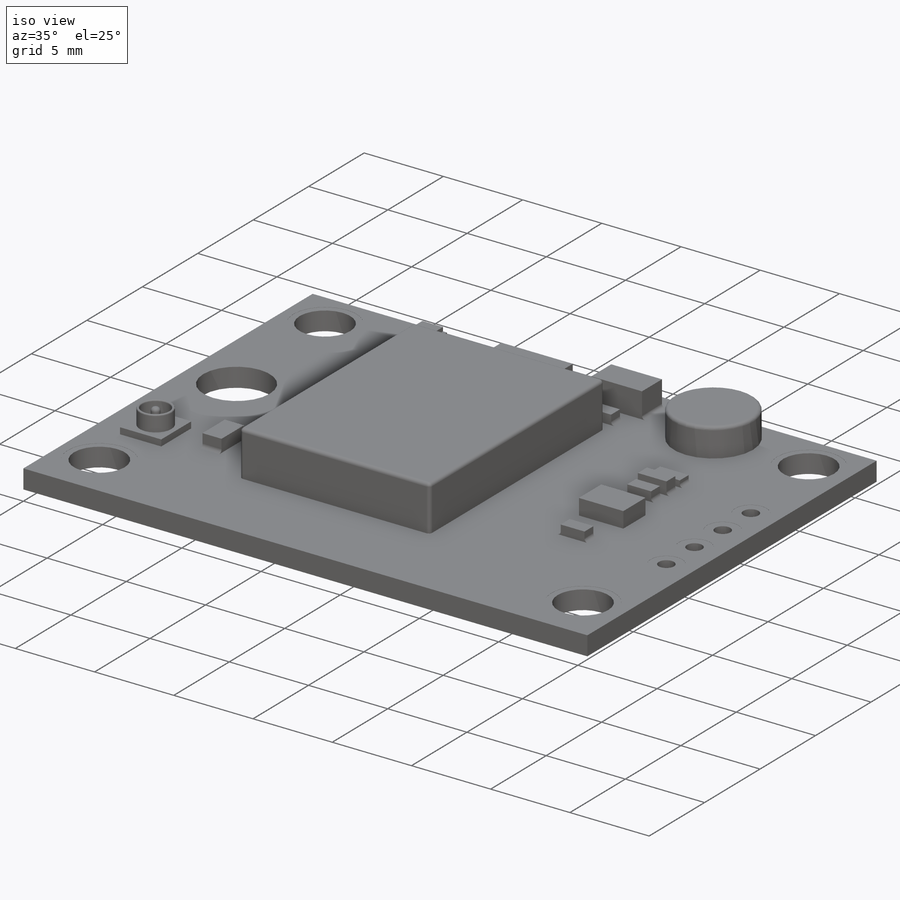
[diagram: iso view]
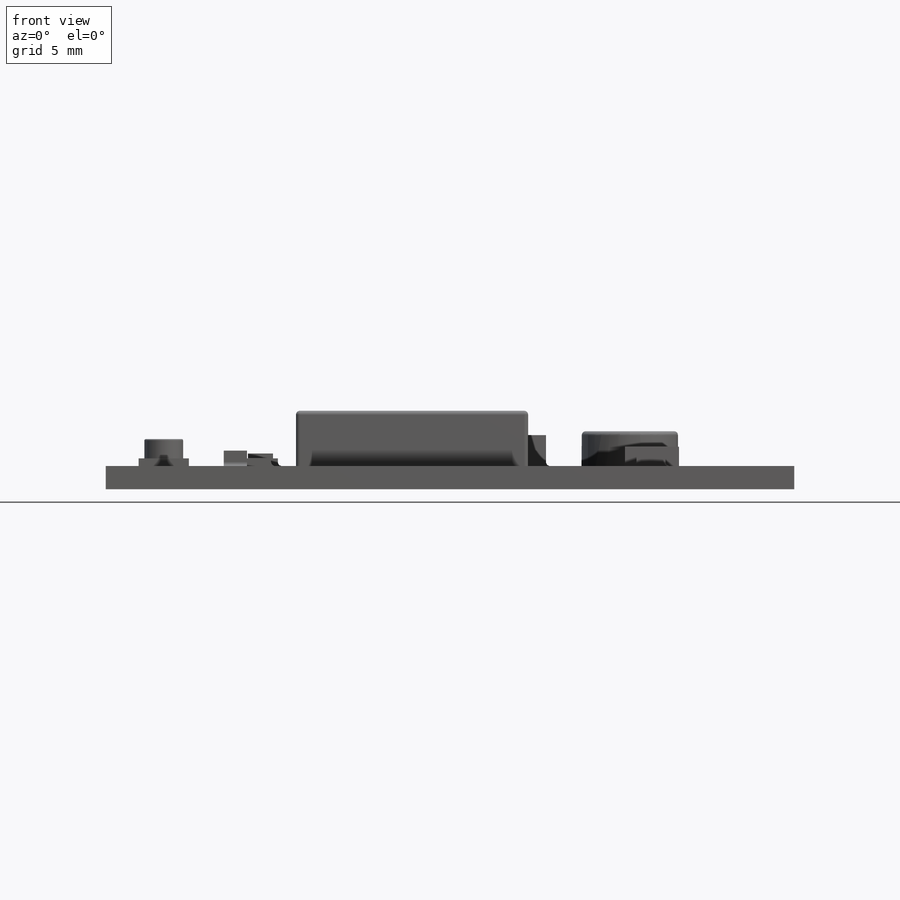
[diagram: front view]
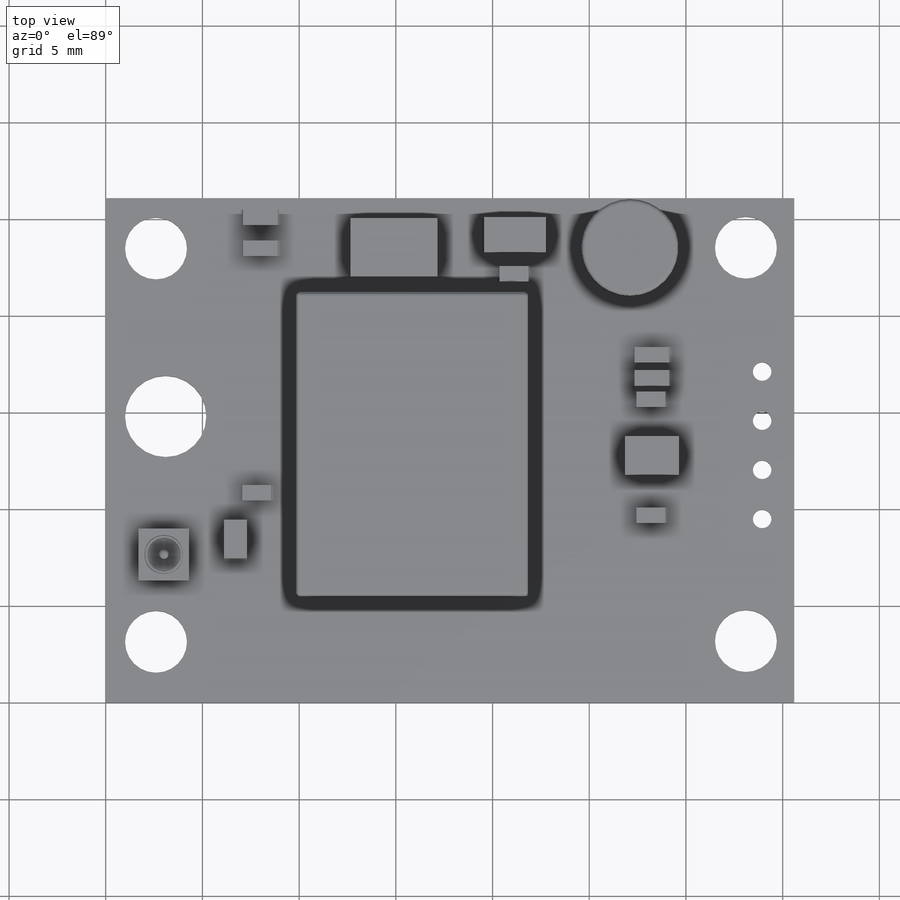
[diagram: top view]
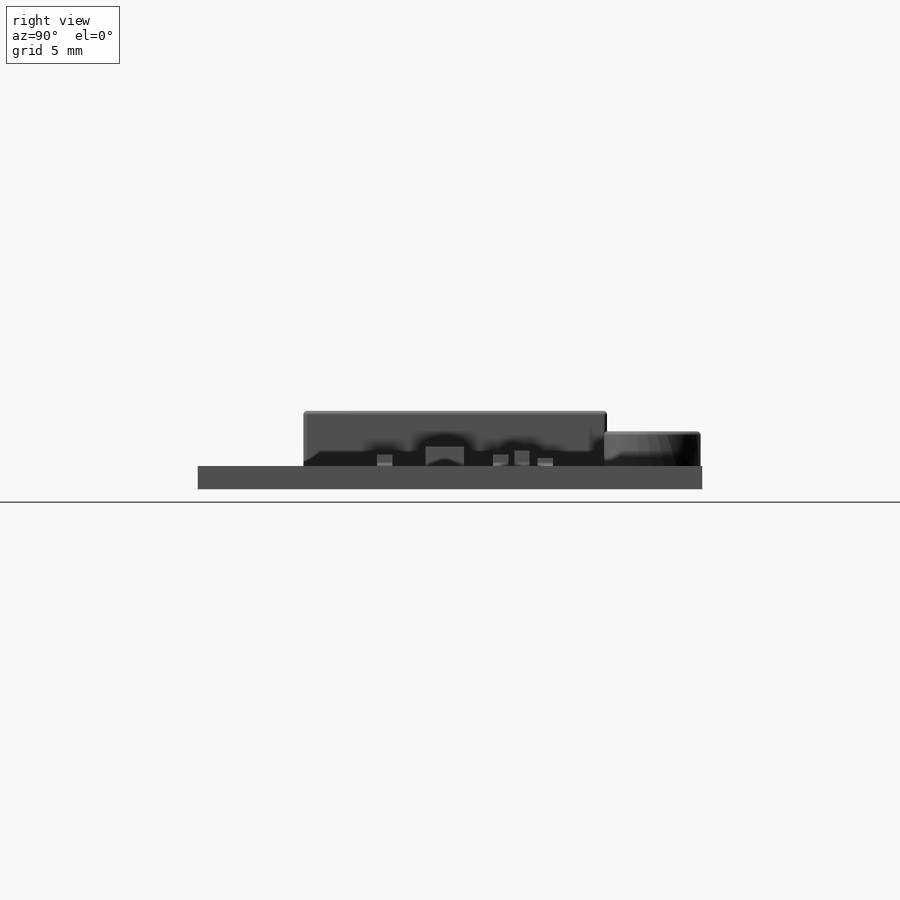
[diagram: right view]
SOLIDWORKS PART (.sldprt)
format: sldprt  version: not decoded by parser v0  size: 1,144,320 bytes
history: native  units: mm
features: sketch x19, extrude x16, fillet x8, plane x3, cut_extrude x3, material x1 (+10 scaffold rows collapsed)
feature tree (60):
  scaffold x10  (default folders/planes/origin — collapsed)
  material  "Matériau <non spécifié>"
  plane  "Plan de face"
  plane  "Plan de dessus"
  plane  "Plan de droite"
  sketch  "Esquisse1"  dims[c1.D3=3.2mm c1.D4=3.2mm c1.D5=3.2mm c1.D6=3.2mm c1.D11=3.2mm c1.D13=4.2mm c1.D16=0.96mm c1.D17=0.96mm c1.D18=0.96mm c1.D19=0.96mm c1.D21=3.2mm c1.D1=26.08mm c1.D2=35.6mm c1.D7=20.34mm c1.D8=20.34mm c1.D9=30.5mm c1.D10=30.5mm c2.D11=2.6mm c2.D12=2.6mm c2.D14=8.7mm c2.D15=3.1mm c2.D20=6.46mm c2.D21=31.98mm c2.D22=1.66mm c2.D23=2.54mm c2.D24=2.54mm c2.D25=2.54mm]
  extrude  "Boss.-Extru.1"  Depth=1.2mm
  sketch  "Esquisse2"  dims[c1.D3=3.2mm c1.D1=15.7mm c1.D2=12.0mm c2.D3=7.6mm c2.D4=7.6mm]
  extrude  "Boss.-Extru.2"  Depth=2.86mm
  fillet  "Congé1"  Radius=0.2mm
  sketch  "Esquisse3"  dims[D1=4.5mm D2=3.0mm]
  extrude  "Boss.-Extru.3"  Depth=1mm
  sketch  "Esquisse4"  dims[D1=5.0mm D2=6.0mm]
  extrude  "Boss.-Extru.4"  Depth=1.8mm
  fillet  "Congé2"  Radius=0.2mm
  sketch  "Esquisse5"  dims[D1=2.7mm D2=2.6mm D3=3.15mm D4=1.7mm]
  extrude  "Boss.-Extru.5"  Depth=0.4mm
  sketch  "Esquisse6"  dims[c1.D1=2.0mm c1.D2=~1.590331mm c1.D3=0.5mm c2.D2=0.15mm]
  extrude  "Boss.-Extru.6"  Depth=1mm
  fillet  "Congé3"  Radius=0.2mm
  fillet  "Congé4"  Radius=0.075mm
  sketch  "Esquisse7"  dims[D1=4.0mm D2=4.0mm D3=4.0mm D4=4.0mm D5=2.0mm D6=2.0mm D7=2.0mm D8=2.0mm]
  cut_extrude  "Enlèv. mat.-Extru.1"  Depth=0.01mm
  sketch  "Esquisse8"  dims[D1=4.0mm D2=4.0mm D3=4.0mm D4=4.0mm D5=2.0mm D6=2.0mm D7=2.0mm D8=2.0mm]
  cut_extrude  "Enlèv. mat.-Extru.2"  Depth=0.01mm
  sketch  "Esquisse9"  dims[c1.D14=3.2mm c1.D1=6.5mm c1.D2=6.5mm c1.D3=6.5mm c1.D4=6.5mm c1.D5=4.0mm c1.D6=4.0mm c1.D7=4.0mm c1.D8=4.0mm c1.D9=29.66mm c1.D10=29.66mm c1.D11=15.0mm c1.D12=14.0mm c1.D13=2.5mm c2.D14=0.2mm]
  cut_extrude  "Enlèv. mat.-Extru.3"  Depth=0.01mm
  sketch  "Esquisse10"  dims[D1=1.2mm D2=2.0mm D3=0.2mm D4=~1.802555mm]
  extrude  "Boss.-Extru.7"  Depth=0.8mm
  fillet  "Congé5"  Radius=0.2mm
  sketch  "Esquisse11"  dims[c1.D1=~1.961913mm c1.D2=1.5mm c2.D1=1.5mm c2.D2=0.8mm c2.D3=1.0mm c2.D4=0.25mm]
  extrude  "Boss.-Extru.8"  Depth=0.4mm
  fillet  "Congé6"  Radius=0.2mm
  sketch  "Esquisse12"  dims[D1=0.8mm D2=0.8mm D3=0.8mm D4=1.8mm D5=1.8mm D6=0.6mm D7=4.5mm D8=4.5mm]
  extrude  "Boss.-Extru.9"  Depth=0.4mm
  fillet  "Congé7"  Radius=0.2mm
  sketch  "Esquisse13"  dims[D1=0.25mm D2=0.25mm]
  extrude  "Boss.-Extru.10"  Depth=0.25mm
  sketch  "Esquisse14"  dims[D1=0.8mm D2=1.8mm D3=5.5mm D4=2.8mm]
  extrude  "Boss.-Extru.11"  Depth=0.4mm
  sketch  "Esquisse15"  dims[D1=0.8mm D2=0.4mm]
  extrude  "Boss.-Extru.12"  Depth=0.8mm
  sketch  "Esquisse16"  dims[D1=5.2mm D2=0.8mm D3=0.8mm D4=0.3mm D5=0.1mm D6=1.5mm]
  extrude  "Boss.-Extru.13"  Depth=0.6mm
  sketch  "Esquisse17"  dims[D1=2.0mm D2=2.8mm D3=1.5mm D4=0.5mm]
  extrude  "Boss.-Extru.14"  Depth=1mm
  sketch  "Esquisse18"  dims[D1=0.8mm D2=1.5mm D3=3.2mm D4=0.6mm]
  extrude  "Boss.-Extru.15"  Depth=0.6mm
  sketch  "Esquisse19"  dims[D1=3.2mm D2=1.8mm D3=0.7mm D4=2.4mm]
  extrude  "Boss.-Extru.16"  Depth=1.6mm
  fillet  "Congé8"  Radius=0.2mm
decode coverage: 46 of 46 modeling features carry decoded parameters
note: ~ marks probable driven/reference dimensions
note: suppression state not decoded; provenance and decode notes live in map.json
